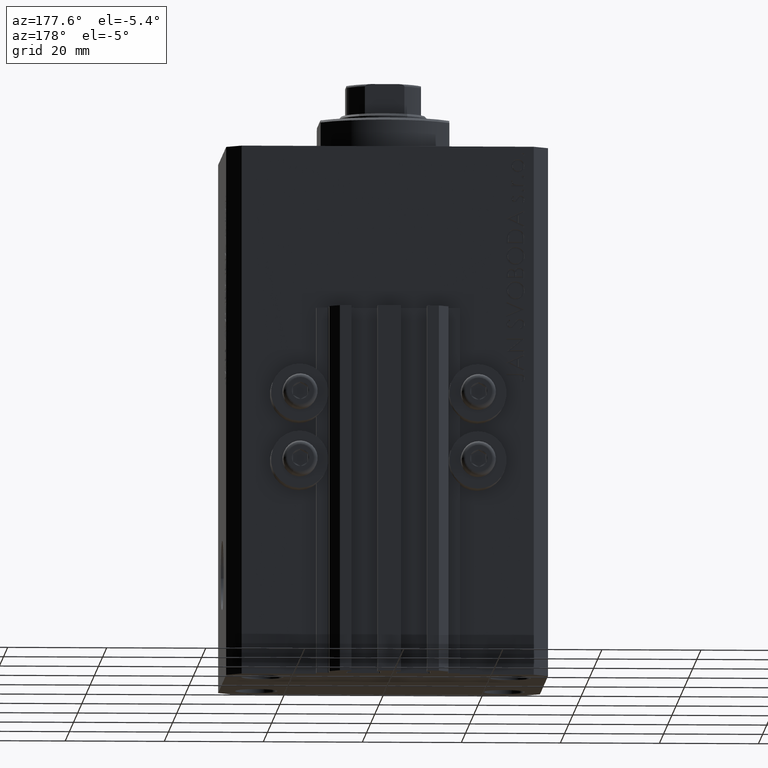
[diagram: clean part render]
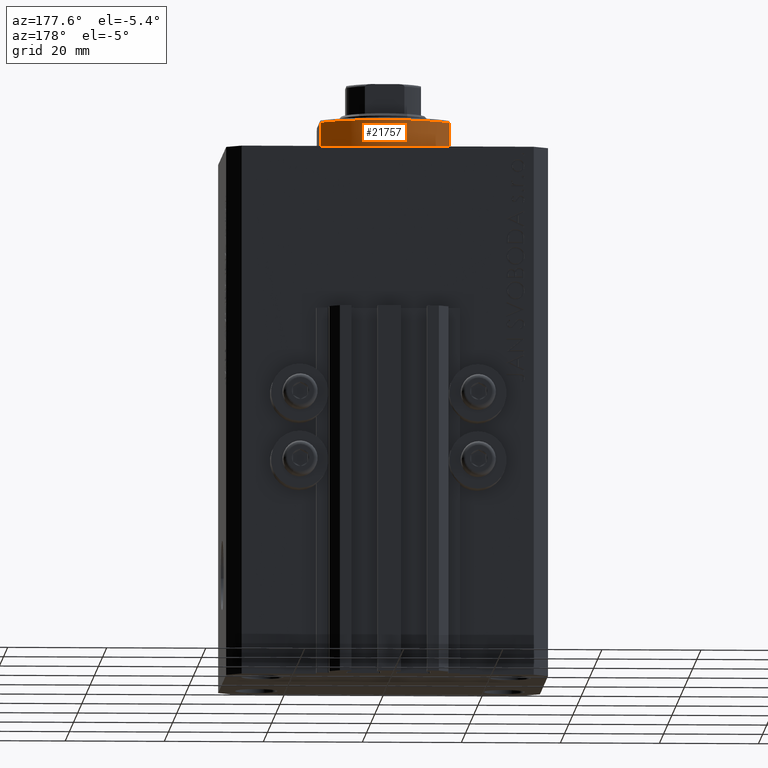
[diagram: same view with one face highlighted and labeled with its STEP entity id]
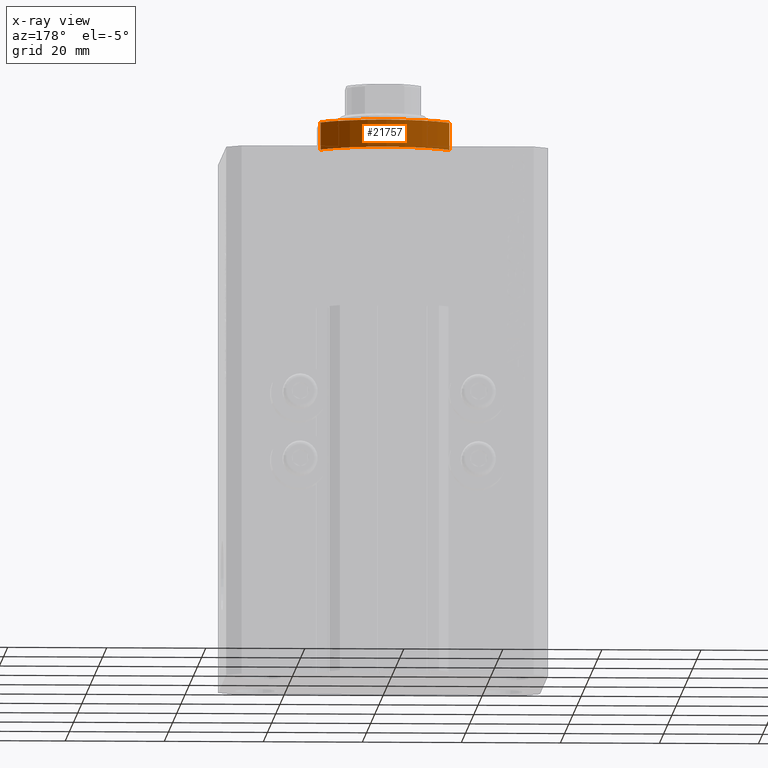
[diagram: x-ray of the same camera — body ghosted, the highlighted face saturated]
A machine part, auxiliary view. The second image highlights one B-rep face of the part: STEP entity #21757.
The next image is the same camera in x-ray: the body ghosted, the highlighted face saturated — about 0% of this face is hidden behind the body in this view.
In plain terms, the highlighted cylindrical surface (partial cylindrical patch) has radius 16 mm, axis along (0, 0, -1).
Its self-contained STEP definition (entity closure, byte-faithful):
#310 = DIRECTION ( 'NONE',  ( 1.000000000000000000, -8.881784197001252323E-16, 0.000000000000000000 ) ) ;
#966 = LINE ( 'NONE', #26271, #4663 ) ;
#3097 = FACE_OUTER_BOUND ( 'NONE', #43068, .T. ) ;
#3535 = VERTEX_POINT ( 'NONE', #13710 ) ;
#3918 = VERTEX_POINT ( 'NONE', #28715 ) ;
#4413 = CARTESIAN_POINT ( 'NONE',  ( 0.000000000000000000, 0.000000000000000000, -6.000000000000023981 ) ) ;
#4663 = VECTOR ( 'NONE', #26969, 1000.000000000000000 ) ;
#8207 = DIRECTION ( 'NONE',  ( -0.000000000000000000, -0.000000000000000000, 1.000000000000000000 ) ) ;
#8401 = DIRECTION ( 'NONE',  ( -0.000000000000000000, -0.000000000000000000, -1.000000000000000000 ) ) ;
#10016 = DIRECTION ( 'NONE',  ( 1.000000000000000000, 0.000000000000000000, 0.000000000000000000 ) ) ;
#11568 = DIRECTION ( 'NONE',  ( 0.000000000000000000, 0.000000000000000000, 1.000000000000000000 ) ) ;
#13516 = EDGE_CURVE ( 'NONE', #3535, #3918, #33281, .T. ) ;
#13710 = CARTESIAN_POINT ( 'NONE',  ( 13.00000000000000000, 9.327379053088916905, -6.000000000000014211 ) ) ;
#13836 = CARTESIAN_POINT ( 'NONE',  ( 0.000000000000000000, 0.000000000000000000, -6.500000000000000000 ) ) ;
#14078 = CYLINDRICAL_SURFACE ( 'NONE', #25417, 16.00000000000000000 ) ;
#17531 = EDGE_CURVE ( 'NONE', #25093, #36405, #966, .T. ) ;
#18291 = VECTOR ( 'NONE', #8207, 1000.000000000000000 ) ;
#21757 = ADVANCED_FACE ( 'NONE', ( #3097 ), #14078, .T. ) ;
#22263 = ORIENTED_EDGE ( 'NONE', *, *, #36683, .T. ) ;
#24000 = EDGE_CURVE ( 'NONE', #3535, #25093, #29307, .T. ) ;
#25093 = VERTEX_POINT ( 'NONE', #40913 ) ;
#25417 = AXIS2_PLACEMENT_3D ( 'NONE', #13836, #34843, #10016 ) ;
#25744 = CIRCLE ( 'NONE', #28029, 16.00000000000000000 ) ;
#26271 = CARTESIAN_POINT ( 'NONE',  ( -13.00000000000000000, 9.327379053088813876, -6.500000000000000000 ) ) ;
#26969 = DIRECTION ( 'NONE',  ( -0.000000000000000000, -0.000000000000000000, 1.000000000000000000 ) ) ;
#28029 = AXIS2_PLACEMENT_3D ( 'NONE', #33240, #8401, #310 ) ;
#28715 = CARTESIAN_POINT ( 'NONE',  ( 13.00000000000000000, 9.327379053088815652, -0.4999999999999995559 ) ) ;
#29307 = CIRCLE ( 'NONE', #38419, 16.00000000000000000 ) ;
#33014 = ORIENTED_EDGE ( 'NONE', *, *, #17531, .T. ) ;
#33240 = CARTESIAN_POINT ( 'NONE',  ( 0.000000000000000000, 0.000000000000000000, -0.4999999999999995559 ) ) ;
#33281 = LINE ( 'NONE', #44246, #18291 ) ;
#34843 = DIRECTION ( 'NONE',  ( -0.000000000000000000, -0.000000000000000000, 1.000000000000000000 ) ) ;
#36405 = VERTEX_POINT ( 'NONE', #38275 ) ;
#36683 = EDGE_CURVE ( 'NONE', #36405, #3918, #25744, .T. ) ;
#37120 = DIRECTION ( 'NONE',  ( -1.000000000000000000, 0.000000000000000000, 0.000000000000000000 ) ) ;
#38275 = CARTESIAN_POINT ( 'NONE',  ( -13.00000000000000000, 9.327379053088815652, -0.4999999999999995559 ) ) ;
#38419 = AXIS2_PLACEMENT_3D ( 'NONE', #4413, #11568, #37120 ) ;
#40913 = CARTESIAN_POINT ( 'NONE',  ( -13.00000000000000000, 9.327379053088916905, -6.000000000000014211 ) ) ;
#42467 = ORIENTED_EDGE ( 'NONE', *, *, #13516, .F. ) ;
#43068 = EDGE_LOOP ( 'NONE', ( #42467, #46408, #33014, #22263 ) ) ;
#44246 = CARTESIAN_POINT ( 'NONE',  ( 13.00000000000000000, 9.327379053088813876, -6.500000000000000000 ) ) ;
#46408 = ORIENTED_EDGE ( 'NONE', *, *, #24000, .T. ) ;